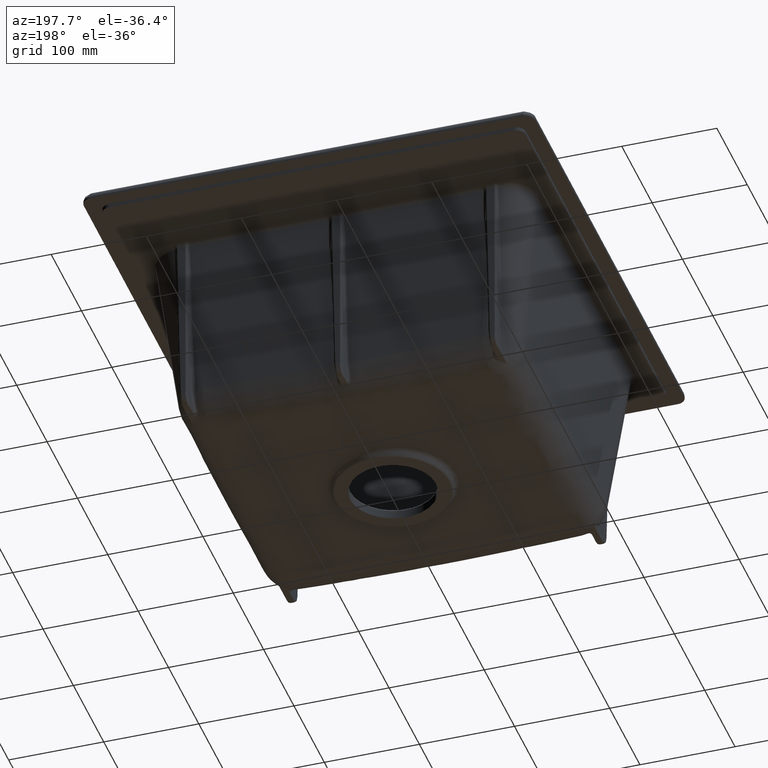
[diagram: clean part render]
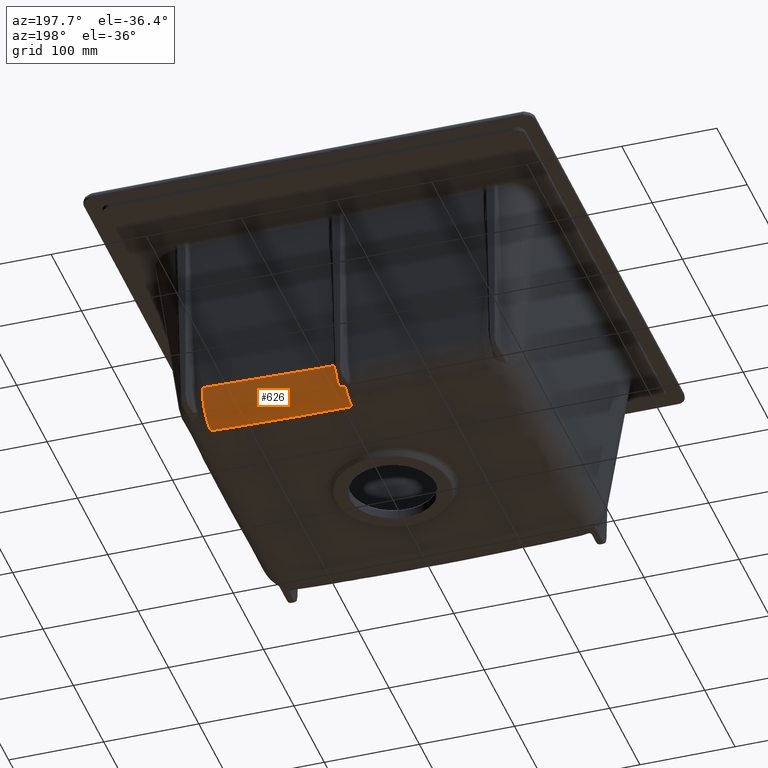
[diagram: same view with one face highlighted and labeled with its STEP entity id]
A machine part, auxiliary view. The second image highlights one B-rep face of the part: STEP entity #626.
In plain terms, the highlighted face is a freeform B-spline surface patch.
Its self-contained STEP definition (entity closure, byte-faithful):
#80=(
BOUNDED_SURFACE()
B_SPLINE_SURFACE(3,2,((#5077,#5078,#5079),(#5080,#5081,#5082),(#5083,#5084,
#5085),(#5086,#5087,#5088)),.UNSPECIFIED.,.F.,.F.,.F.)
B_SPLINE_SURFACE_WITH_KNOTS((4,4),(3,3),(0.,1.),(0.,1.),.UNSPECIFIED.)
GEOMETRIC_REPRESENTATION_ITEM()
RATIONAL_B_SPLINE_SURFACE(((1.,0.757150956435485,1.),(1.,0.757150956435485,
1.),(1.,0.762456092261775,1.),(1.,0.762456092261775,1.)))
REPRESENTATION_ITEM('')
SURFACE()
);
#253=FACE_OUTER_BOUND('',#960,.T.);
#485=B_SPLINE_CURVE_WITH_KNOTS('',3,(#5012,#5013,#5014,#5015,#5016,#5017,
#5018,#5019,#5020,#5021,#5022,#5023,#5024,#5025),.UNSPECIFIED.,.F.,.F.,
(4,1,1,1,1,1,1,2,2,4),(0.,0.250000000000005,0.375000000000008,0.437500000000009,
0.46875000000001,0.48437500000001,0.49218750000001,0.49609375000001,0.500000000000011,
1.),.UNSPECIFIED.);
#486=B_SPLINE_CURVE_WITH_KNOTS('',3,(#5032,#5033,#5034,#5035),
 .UNSPECIFIED.,.F.,.F.,(4,4),(0.,1.),.UNSPECIFIED.);
#487=B_SPLINE_CURVE_WITH_KNOTS('',3,(#5037,#5038,#5039,#5040,#5041,#5042),
 .UNSPECIFIED.,.F.,.F.,(4,2,4),(0.,0.5,1.),.UNSPECIFIED.);
#488=B_SPLINE_CURVE_WITH_KNOTS('',3,(#5044,#5045,#5046,#5047),
 .UNSPECIFIED.,.F.,.F.,(4,4),(0.,1.),.UNSPECIFIED.);
#489=B_SPLINE_CURVE_WITH_KNOTS('',3,(#5050,#5051,#5052,#5053,#5054,#5055,
#5056,#5057,#5058,#5059,#5060,#5061,#5062,#5063,#5064,#5065,#5066,#5067,
#5068,#5069,#5070,#5071,#5072,#5073,#5074,#5075,#5076),.UNSPECIFIED.,.F.,
 .F.,(4,2,2,2,2,2,2,2,2,1,2,2,2,4),(0.,0.125000000000003,0.187500000000004,
0.218750000000005,0.234375000000005,0.250000000000006,0.375000000000008,
0.437500000000009,0.468750000000009,0.484375000000009,0.492187500000009,
0.500000000000009,0.750000000000005,1.),.UNSPECIFIED.);
#626=ADVANCED_FACE('',(#253),#80,.T.);
#960=EDGE_LOOP('',(#1453,#1454,#1455,#1456,#1457,#1458,#1459));
#1206=CIRCLE('',#3552,34.);
#1207=CIRCLE('',#3553,34.);
#1453=ORIENTED_EDGE('',*,*,#2798,.F.);
#1454=ORIENTED_EDGE('',*,*,#2799,.T.);
#1455=ORIENTED_EDGE('',*,*,#2800,.T.);
#1456=ORIENTED_EDGE('',*,*,#2801,.T.);
#1457=ORIENTED_EDGE('',*,*,#2796,.F.);
#1458=ORIENTED_EDGE('',*,*,#2802,.T.);
#1459=ORIENTED_EDGE('',*,*,#2803,.F.);
#2493=VERTEX_POINT('',#5011);
#2494=VERTEX_POINT('',#5026);
#2495=VERTEX_POINT('',#5030);
#2496=VERTEX_POINT('',#5031);
#2497=VERTEX_POINT('',#5036);
#2498=VERTEX_POINT('',#5043);
#2499=VERTEX_POINT('',#5049);
#2796=EDGE_CURVE('',#2493,#2494,#485,.T.);
#2798=EDGE_CURVE('',#2495,#2496,#1206,.T.);
#2799=EDGE_CURVE('',#2495,#2497,#486,.T.);
#2800=EDGE_CURVE('',#2497,#2498,#487,.T.);
#2801=EDGE_CURVE('',#2498,#2494,#488,.T.);
#2802=EDGE_CURVE('',#2493,#2499,#1207,.T.);
#2803=EDGE_CURVE('',#2496,#2499,#489,.T.);
#3552=AXIS2_PLACEMENT_3D('',#5029,#3960,#3961);
#3553=AXIS2_PLACEMENT_3D('',#5048,#3962,#3963);
#3960=DIRECTION('',(-1.,0.,0.));
#3961=DIRECTION('',(0.,0.,1.));
#3962=DIRECTION('',(-0.999306156304742,-0.00421627793068791,-0.0370057964629044));
#3963=DIRECTION('',(-0.037006125393304,0.,0.999315038755734));
#5011=CARTESIAN_POINT('',(146.986676616841,168.268119709845,-181.961378002802));
#5012=CARTESIAN_POINT('',(146.986633240774,168.268251370374,-181.960222433171));
#5013=CARTESIAN_POINT('',(134.154016819095,168.214072829219,-182.435741386044));
#5014=CARTESIAN_POINT('',(115.977866930849,168.142306776155,-183.06562394983));
#5015=CARTESIAN_POINT('',(96.6497145303716,168.075207791917,-183.654544176252));
#5016=CARTESIAN_POINT('',(87.4549772807516,168.045815319215,-183.912518598298));
#5017=CARTESIAN_POINT('',(82.9749433935963,168.032158337718,-184.032384386529));
#5018=CARTESIAN_POINT('',(80.7642601344324,168.025589660683,-184.090036924947));
#5019=CARTESIAN_POINT('',(79.6662519259538,168.022370275595,-184.118293105231));
#5020=CARTESIAN_POINT('',(79.1972484268423,168.02100445772,-184.130280734869));
#5021=CARTESIAN_POINT('',(78.8849286379634,168.02009700549,-184.13824534087));
#5022=CARTESIAN_POINT('',(78.7722484906637,168.019770072304,-184.141114796619));
#5023=CARTESIAN_POINT('',(53.0863069642486,167.945481615175,-184.793136216751));
#5024=CARTESIAN_POINT('',(29.2965458153593,167.905149358644,-185.147127889174));
#5025=CARTESIAN_POINT('',(7.2038492182093,167.898197423197,-185.208144243501));
#5026=CARTESIAN_POINT('',(7.20384959842173,167.898181594457,-185.208283170579));
#5029=CARTESIAN_POINT('',(0.,134.115614987701,-181.369234856114));
#5030=CARTESIAN_POINT('',(-1.3684555315672E-45,157.719534294857,-205.84074877212));
#5031=CARTESIAN_POINT('',(-2.31395756298671E-8,135.813281844774,-215.326824983912));
#5032=CARTESIAN_POINT('',(1.0490027414245E-13,157.719534294857,-205.84074877212));
#5033=CARTESIAN_POINT('',(0.673222084213864,157.719307437128,-205.840967587));
#5034=CARTESIAN_POINT('',(1.34635038039516,157.71908705696,-205.840938021759));
#5035=CARTESIAN_POINT('',(2.01938940314052,157.718873328105,-205.8406624681));
#5036=CARTESIAN_POINT('',(2.01938942126236,157.718897749433,-205.840687788609));
#5037=CARTESIAN_POINT('',(2.01938940314052,157.718873328105,-205.8406624681));
#5038=CARTESIAN_POINT('',(3.41322776581644,157.717961702785,-205.8405441527));
#5039=CARTESIAN_POINT('',(4.80279596066593,158.357026465296,-205.232957113419));
#5040=CARTESIAN_POINT('',(6.52512966283017,159.908018905614,-203.544513797402));
#5041=CARTESIAN_POINT('',(7.00308207852464,160.813907665886,-202.46267396843));
#5042=CARTESIAN_POINT('',(7.0166891114476,161.660152113837,-201.293348268229));
#5043=CARTESIAN_POINT('',(7.01668952129778,161.66039482141,-201.293523921183));
#5044=CARTESIAN_POINT('',(7.0166891114476,161.660152113837,-201.293348268229));
#5045=CARTESIAN_POINT('',(7.07992305988693,165.235400362905,-196.353119686715));
#5046=CARTESIAN_POINT('',(7.14128233001501,167.284180172895,-190.5965563191));
#5047=CARTESIAN_POINT('',(7.20384999569076,167.898165756087,-185.208422145541));
#5048=CARTESIAN_POINT('',(146.986544214185,134.486544214185,-178.113630817893));
#5049=CARTESIAN_POINT('',(148.239408668095,135.63279315098,-212.071199106688));
#5050=CARTESIAN_POINT('',(-3.21083080731841E-10,135.813486189081,-215.326814766696));
#5051=CARTESIAN_POINT('',(6.21231426097201,135.813230199539,-215.326827566174));
#5052=CARTESIAN_POINT('',(12.3359348632183,135.801566318544,-215.306255394938));
#5053=CARTESIAN_POINT('',(21.5528866460952,135.793321427058,-215.244519682013));
#5054=CARTESIAN_POINT('',(24.6303994954894,135.79152564205,-215.218794868359));
#5055=CARTESIAN_POINT('',(29.2739865771255,135.788617668989,-215.172488283861));
#5056=CARTESIAN_POINT('',(30.8263918433977,135.78758033402,-215.155766195026));
#5057=CARTESIAN_POINT('',(33.1641504652919,135.785439097291,-215.128753220768));
#5058=CARTESIAN_POINT('',(33.9449276630571,135.784625952747,-215.119427255848));
#5059=CARTESIAN_POINT('',(35.5099100302872,135.782698565702,-215.100132045673));
#5060=CARTESIAN_POINT('',(36.3306316959039,135.781522854824,-215.089684763974));
#5061=CARTESIAN_POINT('',(43.0769305486629,135.770169356221,-215.001369123172));
#5062=CARTESIAN_POINT('',(49.0778344581306,135.756147284692,-214.905232095539));
#5063=CARTESIAN_POINT('',(58.1874778786241,135.739127010957,-214.734575200376));
#5064=CARTESIAN_POINT('',(61.2418752669969,135.733867379,-214.673281009703));
#5065=CARTESIAN_POINT('',(65.8611102395115,135.726039806774,-214.574726885266));
#5066=CARTESIAN_POINT('',(67.4071147882539,135.72343112727,-214.540773370715));
#5067=CARTESIAN_POINT('',(69.7367460880833,135.719375220736,-214.488189889282));
#5068=CARTESIAN_POINT('',(70.9042165724805,135.717310893276,-214.461484846164));
#5069=CARTESIAN_POINT('',(72.0758893026949,135.715159820233,-214.434159849443));
#5070=CARTESIAN_POINT('',(72.8579619333239,135.713702607868,-214.415805417495));
#5071=CARTESIAN_POINT('',(73.2855403320701,135.71289309369,-214.40570236787));
#5072=CARTESIAN_POINT('',(85.0316344903749,135.690308422215,-214.126587261578));
#5073=CARTESIAN_POINT('',(96.8102268434729,135.6849245027,-213.797420953464));
#5074=CARTESIAN_POINT('',(121.574886938394,135.659177491303,-213.022069866547));
#5075=CARTESIAN_POINT('',(134.557957152797,135.633087865085,-212.575885087744));
#5076=CARTESIAN_POINT('',(148.239408372745,135.633031477434,-212.071191073595));
#5077=CARTESIAN_POINT('',(148.239208218793,135.632679419566,-212.07121033974));
#5078=CARTESIAN_POINT('',(148.079090014286,164.949604410091,-211.087612980793));
#5079=CARTESIAN_POINT('',(146.986544214185,168.267987307189,-181.962540086002));
#5080=CARTESIAN_POINT('',(99.1074408159875,135.632953484746,-213.883626986012));
#5081=CARTESIAN_POINT('',(98.9607705077384,164.762885996552,-212.726419450787));
#5082=CARTESIAN_POINT('',(98.0208225294926,168.061390869915,-183.775813744289));
#5083=CARTESIAN_POINT('',(49.7014507133599,135.813493965899,-215.326814377856));
#5084=CARTESIAN_POINT('',(49.6085312206785,164.630774139544,-213.88595036587));
#5085=CARTESIAN_POINT('',(49.0412584216051,167.897058080867,-185.218144122803));
#5086=CARTESIAN_POINT('',(1.05367732731649E-13,135.813493963793,-215.326814377961));
#5087=CARTESIAN_POINT('',(1.05183425592849E-13,164.630774137501,-213.885950369276));
#5088=CARTESIAN_POINT('',(1.04050472914954E-13,167.897058080705,-185.218144124223));